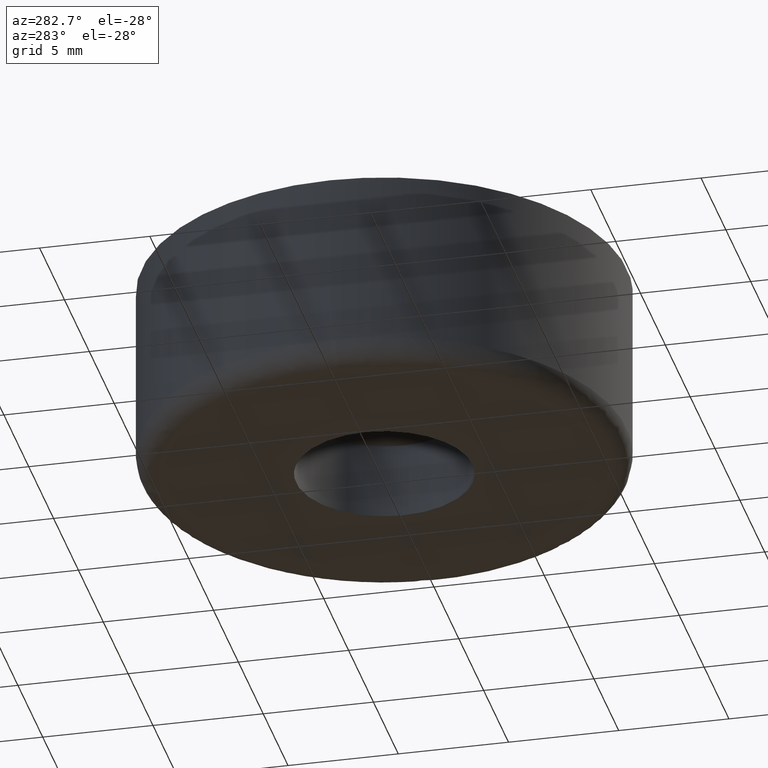
[diagram: clean part render]
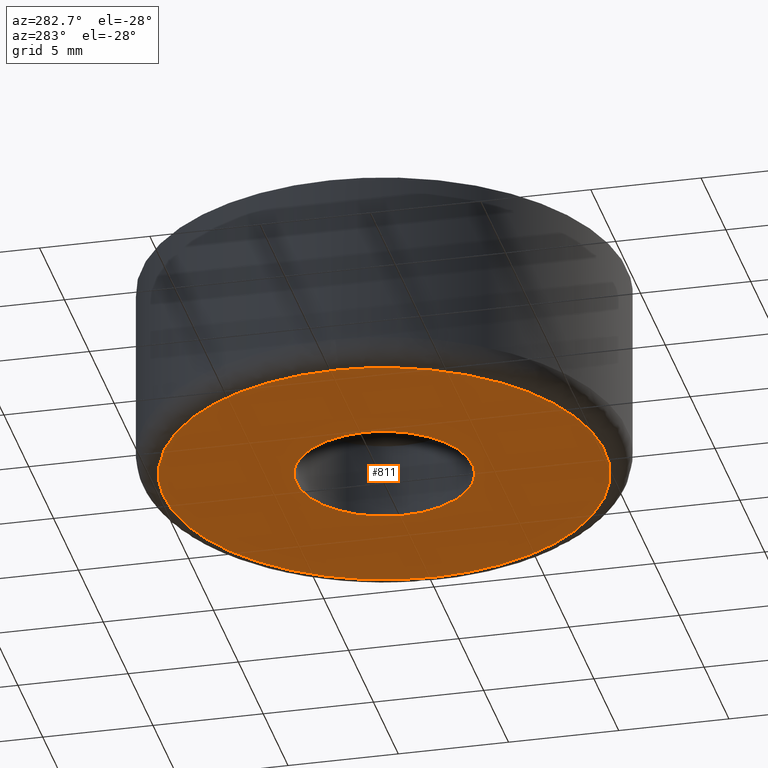
[diagram: same view with one face highlighted and labeled with its STEP entity id]
A machine part, auxiliary view. The second image highlights one B-rep face of the part: STEP entity #811.
In plain terms, the highlighted face is a freeform B-spline surface patch.
Its self-contained STEP definition (entity closure, byte-faithful):
#480=CARTESIAN_POINT('',(-0.472135409144780,3.972038287256218,-7.780033E-015));
#481=VERTEX_POINT('',#480);
#482=CARTESIAN_POINT('',(4.0,0.0,0.0));
#483=VERTEX_POINT('',#482);
#484=CARTESIAN_POINT('',(-0.472135409144780,3.972038287256219,-7.780033E-015));
#485=CARTESIAN_POINT('',(-0.236895705781812,4.000000000000000,0.0));
#486=CARTESIAN_POINT('',(0.0,4.0,0.0));
#487=CARTESIAN_POINT('',(4.000000000000000,4.000000000000000,0.0));
#488=CARTESIAN_POINT('',(4.0,0.0,0.0));
#496=(BOUNDED_CURVE()B_SPLINE_CURVE(2,(#484,#485,#486,#487,#488),.UNSPECIFIED.,.F.,.U.)B_SPLINE_CURVE_WITH_KNOTS((3,2,3),(0.229562538592431,0.250000000000000,0.500000000000000),.UNSPECIFIED.)CURVE()GEOMETRIC_REPRESENTATION_ITEM()RATIONAL_B_SPLINE_CURVE((0.956026881741091,0.976056024575846,1.0,0.707106781186548,1.0))REPRESENTATION_ITEM(''));
#497=EDGE_CURVE('',#481,#483,#496,.T.);
#499=CARTESIAN_POINT('',(0.244188269697965,-3.992539553831259,-5.921652E-014));
#500=VERTEX_POINT('',#499);
#501=CARTESIAN_POINT('',(4.0,0.0,0.0));
#502=CARTESIAN_POINT('',(4.0,-3.762829827640497,0.0));
#503=CARTESIAN_POINT('',(0.244188269697965,-3.992539553831259,-5.921652E-014));
#511=(BOUNDED_CURVE()B_SPLINE_CURVE(2,(#501,#502,#503),.UNSPECIFIED.,.F.,.U.)B_SPLINE_CURVE_WITH_KNOTS((3,3),(0.500000000000000,0.739333216724596),.UNSPECIFIED.)CURVE()GEOMETRIC_REPRESENTATION_ITEM()RATIONAL_B_SPLINE_CURVE((1.0,0.719603695138222,0.976072587078522))REPRESENTATION_ITEM(''));
#512=EDGE_CURVE('',#483,#500,#511,.T.);
#579=CARTESIAN_POINT('',(-4.0,0.0,0.0));
#580=VERTEX_POINT('',#579);
#581=CARTESIAN_POINT('',(-4.0,0.0,0.0));
#582=CARTESIAN_POINT('',(-4.0,3.552699481446219,0.0));
#583=CARTESIAN_POINT('',(-0.472135409144780,3.972038287256219,-7.780033E-015));
#591=(BOUNDED_CURVE()B_SPLINE_CURVE(2,(#581,#582,#583),.UNSPECIFIED.,.F.,.U.)B_SPLINE_CURVE_WITH_KNOTS((3,3),(0.0,0.229562538592431),.UNSPECIFIED.)CURVE()GEOMETRIC_REPRESENTATION_ITEM()RATIONAL_B_SPLINE_CURVE((1.0,0.731050756610702,0.956026881741091))REPRESENTATION_ITEM(''));
#592=EDGE_CURVE('',#580,#481,#591,.T.);
#626=CARTESIAN_POINT('',(0.244188269697965,-3.992539553831259,-5.921652E-014));
#627=CARTESIAN_POINT('',(0.122208100718648,-4.000000000000001,0.0));
#628=CARTESIAN_POINT('',(0.0,-4.0,0.0));
#629=CARTESIAN_POINT('',(-4.000000000000000,-4.000000000000000,0.0));
#630=CARTESIAN_POINT('',(-4.0,0.0,0.0));
#638=(BOUNDED_CURVE()B_SPLINE_CURVE(2,(#626,#627,#628,#629,#630),.UNSPECIFIED.,.F.,.U.)B_SPLINE_CURVE_WITH_KNOTS((3,2,3),(0.739333216724596,0.750000000000000,1.0),.UNSPECIFIED.)CURVE()GEOMETRIC_REPRESENTATION_ITEM()RATIONAL_B_SPLINE_CURVE((0.976072587078522,0.987503086048325,1.0,0.707106781186548,1.0))REPRESENTATION_ITEM(''));
#639=EDGE_CURVE('',#500,#580,#638,.T.);
#673=CARTESIAN_POINT('',(-0.251300954478001,9.996841893394862,1.718108E-016));
#674=VERTEX_POINT('',#673);
#675=CARTESIAN_POINT('',(10.0,0.0,0.0));
#676=VERTEX_POINT('',#675);
#677=CARTESIAN_POINT('',(-0.251300954478001,9.996841893394862,1.718108E-016));
#678=CARTESIAN_POINT('',(-0.125670321264293,10.000000000000002,0.0));
#679=CARTESIAN_POINT('',(0.0,10.0,0.0));
#680=CARTESIAN_POINT('',(10.000000000000002,10.000000000000002,0.0));
#681=CARTESIAN_POINT('',(10.0,0.0,0.0));
#689=(BOUNDED_CURVE()B_SPLINE_CURVE(2,(#677,#678,#679,#680,#681),.UNSPECIFIED.,.F.,.U.)B_SPLINE_CURVE_WITH_KNOTS((3,2,3),(0.245579891768740,0.250000000000000,0.500000000000000),.UNSPECIFIED.)CURVE()GEOMETRIC_REPRESENTATION_ITEM()RATIONAL_B_SPLINE_CURVE((0.989826157679164,0.994821521090570,1.0,0.707106781186548,1.0))REPRESENTATION_ITEM(''));
#690=EDGE_CURVE('',#674,#676,#689,.T.);
#709=CARTESIAN_POINT('',(-9.996841893421046,-0.251300954480380,1.874299E-016));
#710=VERTEX_POINT('',#709);
#724=CARTESIAN_POINT('',(10.0,0.0,0.0));
#725=CARTESIAN_POINT('',(10.000000000000002,-10.000000000000002,0.0));
#726=CARTESIAN_POINT('',(0.0,-10.0,0.0));
#727=CARTESIAN_POINT('',(-9.751778761743656,-10.0,0.0));
#728=CARTESIAN_POINT('',(-9.996841893421046,-0.251300954480380,1.874299E-016));
#736=(BOUNDED_CURVE()B_SPLINE_CURVE(2,(#724,#725,#726,#727,#728),.UNSPECIFIED.,.F.,.U.)B_SPLINE_CURVE_WITH_KNOTS((3,2,3),(0.500000000000000,0.750000000000000,0.995579891768680),.UNSPECIFIED.)CURVE()GEOMETRIC_REPRESENTATION_ITEM()RATIONAL_B_SPLINE_CURVE((1.0,0.707106781186548,1.0,0.712285260096048,0.989826157679029))REPRESENTATION_ITEM(''));
#737=EDGE_CURVE('',#676,#710,#736,.T.);
#759=CARTESIAN_POINT('',(-10.0,0.0,0.0));
#760=VERTEX_POINT('',#759);
#761=CARTESIAN_POINT('',(-10.0,0.0,0.0));
#762=CARTESIAN_POINT('',(-10.0,9.751778761746998,0.0));
#763=CARTESIAN_POINT('',(-0.251300954478001,9.996841893394862,1.718108E-016));
#771=(BOUNDED_CURVE()B_SPLINE_CURVE(2,(#761,#762,#763),.UNSPECIFIED.,.F.,.U.)B_SPLINE_CURVE_WITH_KNOTS((3,3),(0.0,0.245579891768740),.UNSPECIFIED.)CURVE()GEOMETRIC_REPRESENTATION_ITEM()RATIONAL_B_SPLINE_CURVE((1.0,0.712285260095977,0.989826157679164))REPRESENTATION_ITEM(''));
#772=EDGE_CURVE('',#760,#674,#771,.T.);
#774=CARTESIAN_POINT('',(-9.996841893421046,-0.251300954480380,1.874299E-016));
#775=CARTESIAN_POINT('',(-9.999999999999998,-0.125670321266014,0.0));
#776=CARTESIAN_POINT('',(-10.0,0.0,0.0));
#784=(BOUNDED_CURVE()B_SPLINE_CURVE(2,(#774,#775,#776),.UNSPECIFIED.,.F.,.U.)B_SPLINE_CURVE_WITH_KNOTS((3,3),(0.995579891768680,1.0),.UNSPECIFIED.)CURVE()GEOMETRIC_REPRESENTATION_ITEM()RATIONAL_B_SPLINE_CURVE((0.989826157679028,0.994821521090500,1.0))REPRESENTATION_ITEM(''));
#785=EDGE_CURVE('',#710,#760,#784,.T.);
#794=CARTESIAN_POINT('',(-10.998999961236120,-10.998013110995339,0.0));
#795=CARTESIAN_POINT('',(10.999000497677921,-10.998013110995339,0.0));
#796=CARTESIAN_POINT('',(-10.998999961236120,10.995643701795210,0.0));
#797=CARTESIAN_POINT('',(10.999000497677921,10.995643701795210,0.0));
#798=B_SPLINE_SURFACE_WITH_KNOTS('',1,1,((#794,#796),(#795,#797)),.UNSPECIFIED.,.F.,.F.,.U.,(2,2),(2,2),(0.0,21.998000458914039),(0.0,21.993656812790540),.UNSPECIFIED.);
#799=ORIENTED_EDGE('',*,*,#772,.T.);
#800=ORIENTED_EDGE('',*,*,#690,.T.);
#801=ORIENTED_EDGE('',*,*,#737,.T.);
#802=ORIENTED_EDGE('',*,*,#785,.T.);
#803=EDGE_LOOP('',(#799,#800,#801,#802));
#804=FACE_OUTER_BOUND('',#803,.T.);
#805=ORIENTED_EDGE('',*,*,#512,.F.);
#806=ORIENTED_EDGE('',*,*,#497,.F.);
#807=ORIENTED_EDGE('',*,*,#592,.F.);
#808=ORIENTED_EDGE('',*,*,#639,.F.);
#809=EDGE_LOOP('',(#805,#806,#807,#808));
#810=FACE_BOUND('',#809,.T.);
#811=ADVANCED_FACE('',(#804,#810),#798,.F.);